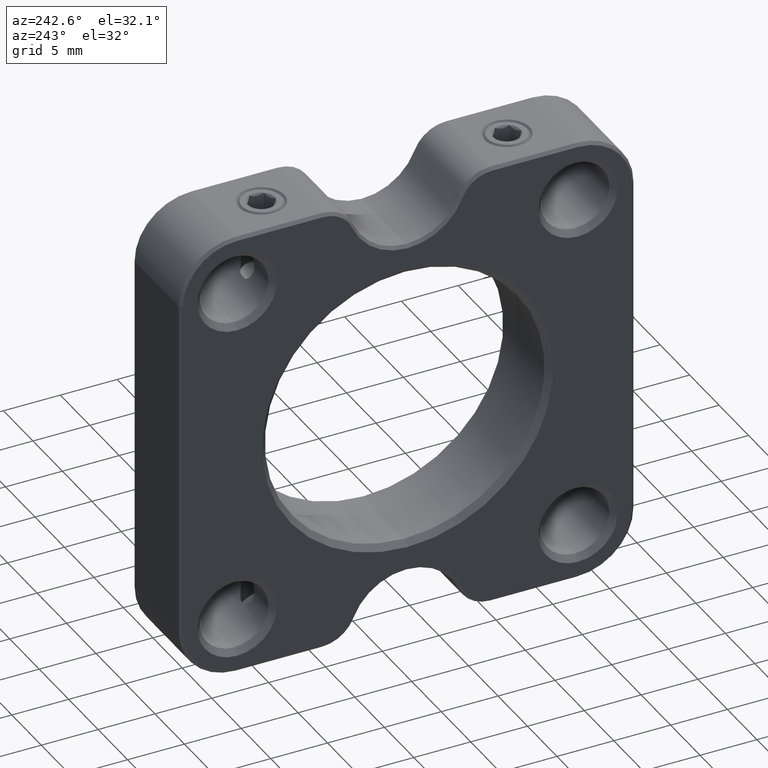
[diagram: clean part render]
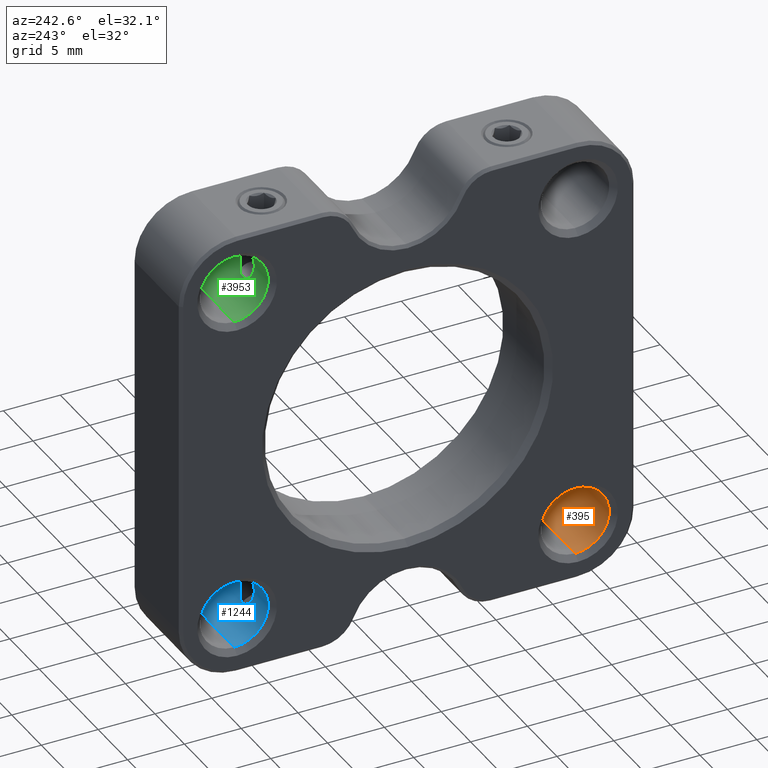
[diagram: same view with three faces highlighted in distinct colors, each labeled with its STEP entity id]
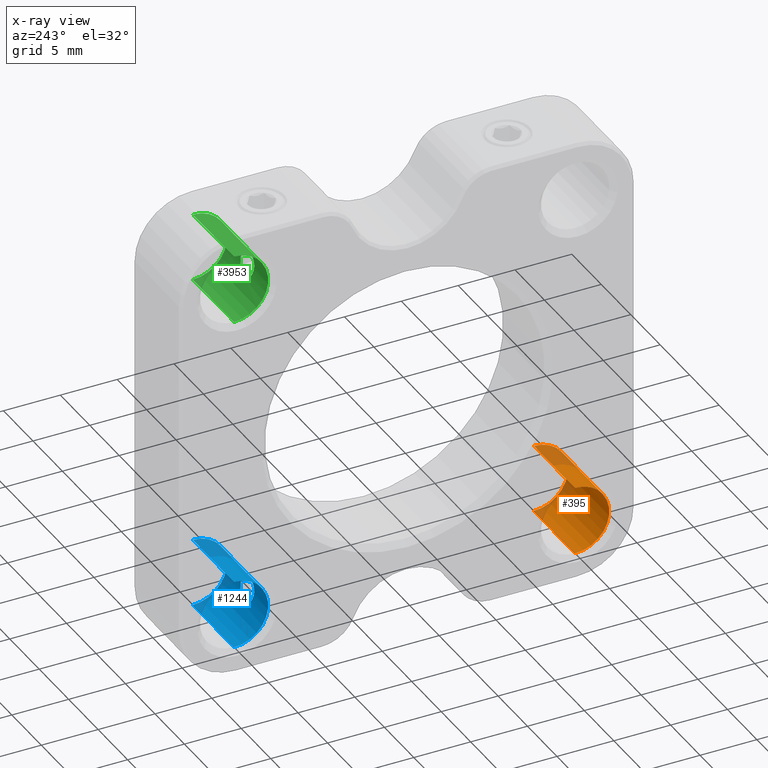
[diagram: x-ray of the same camera — body ghosted, the three highlighted faces saturated]
A machine part, auxiliary view with three faces highlighted in distinct colors.
The next image is the same camera in x-ray (body ghosted, the three faces saturated) — at least one of them is partly hidden behind the body in this view.
Their STEP definitions:

[orange] entity #395 — the highlighted cylindrical surface (partial cylindrical patch) has radius 3 mm, axis along (1, -0, -0).
#130 = CYLINDRICAL_SURFACE ( 'NONE', #4035, 2.999999999999995559 ) ;
#221 = EDGE_CURVE ( 'NONE', #1756, #6231, #7242, .T. ) ;
#395 = ADVANCED_FACE ( 'NONE', ( #3080 ), #130, .F. ) ;
#427 = VERTEX_POINT ( 'NONE', #6609 ) ;
#1017 = DIRECTION ( 'NONE',  ( 1.000000000000000000, 0.000000000000000000, 0.000000000000000000 ) ) ;
#1109 = DIRECTION ( 'NONE',  ( 1.000000000000000000, -0.000000000000000000, -0.000000000000000000 ) ) ;
#1223 = EDGE_CURVE ( 'NONE', #4517, #427, #4166, .T. ) ;
#1317 = CIRCLE ( 'NONE', #3235, 2.999999999999995559 ) ;
#1681 = DIRECTION ( 'NONE',  ( 0.000000000000000000, 0.000000000000000000, -1.000000000000000000 ) ) ;
#1756 = VERTEX_POINT ( 'NONE', #3896 ) ;
#1899 = DIRECTION ( 'NONE',  ( 1.000000000000000000, -0.000000000000000000, -0.000000000000000000 ) ) ;
#2056 = AXIS2_PLACEMENT_3D ( 'NONE', #7158, #1017, #1681 ) ;
#2096 = CARTESIAN_POINT ( 'NONE',  ( -18.70960063692994879, -12.89069877659088981, 28.00000000000001066 ) ) ;
#2658 = EDGE_CURVE ( 'NONE', #1756, #4517, #1317, .T. ) ;
#3080 = FACE_OUTER_BOUND ( 'NONE', #5959, .T. ) ;
#3235 = AXIS2_PLACEMENT_3D ( 'NONE', #6722, #7953, #6042 ) ;
#3313 = DIRECTION ( 'NONE',  ( 1.000000000000000000, -0.000000000000000000, -0.000000000000000000 ) ) ;
#3414 = CARTESIAN_POINT ( 'NONE',  ( -18.20960063692994524, -12.89069877659088981, 28.00000000000001066 ) ) ;
#3801 = VECTOR ( 'NONE', #3313, 1000.000000000000000 ) ;
#3896 = CARTESIAN_POINT ( 'NONE',  ( -18.20960063692994524, -12.89069877659088981, 22.00000000000002132 ) ) ;
#3924 = EDGE_CURVE ( 'NONE', #427, #6231, #7739, .T. ) ;
#4035 = AXIS2_PLACEMENT_3D ( 'NONE', #6003, #1109, #7230 ) ;
#4166 = LINE ( 'NONE', #2096, #3801 ) ;
#4517 = VERTEX_POINT ( 'NONE', #3414 ) ;
#4609 = ORIENTED_EDGE ( 'NONE', *, *, #1223, .T. ) ;
#4844 = VECTOR ( 'NONE', #1899, 1000.000000000000000 ) ;
#5188 = ORIENTED_EDGE ( 'NONE', *, *, #221, .F. ) ;
#5449 = ORIENTED_EDGE ( 'NONE', *, *, #3924, .T. ) ;
#5868 = CARTESIAN_POINT ( 'NONE',  ( -11.20960063692994169, -12.89069877659088981, 22.00000000000002132 ) ) ;
#5959 = EDGE_LOOP ( 'NONE', ( #6797, #4609, #5449, #5188 ) ) ;
#6003 = CARTESIAN_POINT ( 'NONE',  ( -18.70960063692994879, -12.89069877659088981, 25.00000000000001421 ) ) ;
#6042 = DIRECTION ( 'NONE',  ( 0.000000000000000000, 0.000000000000000000, -1.000000000000000000 ) ) ;
#6205 = CARTESIAN_POINT ( 'NONE',  ( -18.70960063692994879, -12.89069877659088981, 22.00000000000002132 ) ) ;
#6231 = VERTEX_POINT ( 'NONE', #5868 ) ;
#6609 = CARTESIAN_POINT ( 'NONE',  ( -11.20960063692994169, -12.89069877659088981, 28.00000000000001066 ) ) ;
#6722 = CARTESIAN_POINT ( 'NONE',  ( -18.20960063692994524, -12.89069877659088981, 25.00000000000001421 ) ) ;
#6797 = ORIENTED_EDGE ( 'NONE', *, *, #2658, .T. ) ;
#7158 = CARTESIAN_POINT ( 'NONE',  ( -11.20960063692994169, -12.89069877659088981, 25.00000000000001421 ) ) ;
#7230 = DIRECTION ( 'NONE',  ( 0.000000000000000000, 0.000000000000000000, -1.000000000000000000 ) ) ;
#7242 = LINE ( 'NONE', #6205, #4844 ) ;
#7739 = CIRCLE ( 'NONE', #2056, 2.999999999999995559 ) ;
#7953 = DIRECTION ( 'NONE',  ( -1.000000000000000000, -0.000000000000000000, -0.000000000000000000 ) ) ;

[blue] entity #1244 — the highlighted cylindrical surface (partial cylindrical patch) has radius 3 mm, axis along (1, -0, -0).
#71 = CARTESIAN_POINT ( 'NONE',  ( -13.62445635263214605, 14.15372243505705896, 24.46049565034046935 ) ) ;
#89 = CARTESIAN_POINT ( 'NONE',  ( -13.57505583098314261, 14.10759699773461229, 25.13284159004853180 ) ) ;
#164 = EDGE_CURVE ( 'NONE', #5740, #5469, #1291, .T. ) ;
#167 = CARTESIAN_POINT ( 'NONE',  ( -14.16058633639641151, 14.47330847950293631, 26.43432663917163694 ) ) ;
#411 = CARTESIAN_POINT ( 'NONE',  ( -15.10499939181904594, 14.51122501205579240, 26.50000000000001776 ) ) ;
#439 = CIRCLE ( 'NONE', #5912, 3.000000000000002665 ) ;
#575 = CARTESIAN_POINT ( 'NONE',  ( -15.33745885246667662, 14.44252658419067004, 23.62285094675122110 ) ) ;
#632 = CARTESIAN_POINT ( 'NONE',  ( -15.66504091560525680, 14.25625921975230881, 25.94099864801087207 ) ) ;
#737 = CARTESIAN_POINT ( 'NONE',  ( -13.78354998335881909, 14.27911758264861319, 23.99479928859547329 ) ) ;
#739 = AXIS2_PLACEMENT_3D ( 'NONE', #7628, #6305, #2692 ) ;
#952 = LINE ( 'NONE', #4952, #7662 ) ;
#1011 = EDGE_CURVE ( 'NONE', #1543, #2921, #952, .T. ) ;
#1022 = CYLINDRICAL_SURFACE ( 'NONE', #739, 3.000000000000002665 ) ;
#1176 = CARTESIAN_POINT ( 'NONE',  ( -15.12244533176195560, 14.50857629180392294, 23.50390961070601392 ) ) ;
#1212 = CARTESIAN_POINT ( 'NONE',  ( -15.25133609942801804, 14.46933604295696973, 26.42603518397427820 ) ) ;
#1219 = DIRECTION ( 'NONE',  ( 0.000000000000000000, 0.000000000000000000, -1.000000000000000000 ) ) ;
#1240 = CARTESIAN_POINT ( 'NONE',  ( -15.63838352948489252, 14.27717104077074062, 24.00033365304306798 ) ) ;
#1244 = ADVANCED_FACE ( 'NONE', ( #2465, #2260 ), #1022, .F. ) ;
#1290 = CARTESIAN_POINT ( 'NONE',  ( -13.71800230406092247, 14.22947356670179708, 24.14378531598565303 ) ) ;
#1291 = B_SPLINE_CURVE_WITH_KNOTS ( 'NONE', 3,
 ( #3048, #4920, #1212, #2985, #4204, #7385, #632, #6701, #6753, #7959, #7273, #3652, #4887, #1792, #1240, #7303, #575, #1176, #3811, #5579, #7414, #6773, #6189, #6265, #7492, #737, #1290, #71, #3217, #4392, #89, #4426, #3788, #5050, #6230, #6877, #167, #5552 ),
 .UNSPECIFIED., .F., .F.,
 ( 4, 2, 2, 2, 2, 2, 2, 2, 2, 2, 2, 2, 2, 2, 2, 2, 2, 2, 4 ),
 ( 1.734723475976807094E-18, 0.0002515376885659038127, 0.0005030753771318058907, 0.001006150754263614600, 0.001509226131395423418, 0.002012301508527232670, 0.002515376885659041054, 0.003018452262790849439, 0.003521527639922658257, 0.003773065328488565268, 0.004024603017054472279, 0.004527678394186281097, 0.005030753771318089915, 0.005533829148449898733, 0.006036904525581705816, 0.006539979902713514634, 0.007043055279845323452, 0.007546130656977132270, 0.008049206034108941088 ),
 .UNSPECIFIED. ) ;
#1346 = LINE ( 'NONE', #4167, #5926 ) ;
#1404 = CARTESIAN_POINT ( 'NONE',  ( -18.20960063692993813, 17.10930122340911197, 22.00000000000001421 ) ) ;
#1543 = VERTEX_POINT ( 'NONE', #2490 ) ;
#1782 = ORIENTED_EDGE ( 'NONE', *, *, #5816, .T. ) ;
#1792 = CARTESIAN_POINT ( 'NONE',  ( -15.70390784982724242, 14.22739032781373147, 24.15098615899930223 ) ) ;
#1919 = CARTESIAN_POINT ( 'NONE',  ( -14.31420188204085164, 14.51122501205579240, 26.50000000000001776 ) ) ;
#2246 = DIRECTION ( 'NONE',  ( 1.000000000000000000, -0.000000000000000000, -0.000000000000000000 ) ) ;
#2260 = FACE_OUTER_BOUND ( 'NONE', #5656, .T. ) ;
#2329 = CARTESIAN_POINT ( 'NONE',  ( -11.20960063692995590, 17.10930122340911197, 22.00000000000001421 ) ) ;
#2465 = FACE_BOUND ( 'NONE', #2970, .T. ) ;
#2490 = CARTESIAN_POINT ( 'NONE',  ( -18.20960063692993813, 17.10930122340911197, 28.00000000000001776 ) ) ;
#2502 = ORIENTED_EDGE ( 'NONE', *, *, #3963, .T. ) ;
#2692 = DIRECTION ( 'NONE',  ( 0.000000000000000000, 0.000000000000000000, -1.000000000000000000 ) ) ;
#2921 = VERTEX_POINT ( 'NONE', #4053 ) ;
#2970 = EDGE_LOOP ( 'NONE', ( #6315, #5012 ) ) ;
#2985 = CARTESIAN_POINT ( 'NONE',  ( -15.37869519850812949, 14.41910201066424513, 26.32884186255519765 ) ) ;
#3048 = CARTESIAN_POINT ( 'NONE',  ( -15.10499939181904594, 14.51122501205579240, 26.50000000000001776 ) ) ;
#3051 = DIRECTION ( 'NONE',  ( 1.000000000000000000, -0.000000000000000000, -0.000000000000000000 ) ) ;
#3217 = CARTESIAN_POINT ( 'NONE',  ( -13.59706721609326685, 14.12792968839333874, 24.62645407397441133 ) ) ;
#3652 = CARTESIAN_POINT ( 'NONE',  ( -15.82261867112496745, 14.12748381113720697, 24.62951749241037902 ) ) ;
#3749 = ORIENTED_EDGE ( 'NONE', *, *, #1011, .T. ) ;
#3788 = CARTESIAN_POINT ( 'NONE',  ( -13.64500888286690738, 14.17176925801279097, 25.62975088519756994 ) ) ;
#3811 = CARTESIAN_POINT ( 'NONE',  ( -15.04636595012643951, 14.52664361248421443, 23.47340717880286576 ) ) ;
#3838 = VERTEX_POINT ( 'NONE', #1404 ) ;
#3963 = EDGE_CURVE ( 'NONE', #2921, #4593, #4448, .T. ) ;
#4053 = CARTESIAN_POINT ( 'NONE',  ( -11.20960063692995590, 17.10930122340911197, 28.00000000000001776 ) ) ;
#4167 = CARTESIAN_POINT ( 'NONE',  ( -18.70960063692994879, 17.10930122340911197, 22.00000000000001421 ) ) ;
#4204 = CARTESIAN_POINT ( 'NONE',  ( -15.43697051555606059, 14.39145029093751127, 26.27194458301286772 ) ) ;
#4225 = DIRECTION ( 'NONE',  ( 0.000000000000000000, 0.000000000000000000, -1.000000000000000000 ) ) ;
#4392 = CARTESIAN_POINT ( 'NONE',  ( -13.57232532395628333, 14.10487255572225251, 24.96099782782963672 ) ) ;
#4426 = CARTESIAN_POINT ( 'NONE',  ( -13.61126857514714317, 14.14087394214201510, 25.46509635808939365 ) ) ;
#4448 = CIRCLE ( 'NONE', #4932, 3.000000000000002665 ) ;
#4463 = EDGE_CURVE ( 'NONE', #5469, #5740, #6908, .T. ) ;
#4593 = VERTEX_POINT ( 'NONE', #2329 ) ;
#4887 = CARTESIAN_POINT ( 'NONE',  ( -15.79582624167567495, 14.15273182314700584, 24.46620950383516302 ) ) ;
#4920 = CARTESIAN_POINT ( 'NONE',  ( -15.18175395498310287, 14.49227987938331097, 26.46718606765513471 ) ) ;
#4932 = AXIS2_PLACEMENT_3D ( 'NONE', #6600, #7876, #1219 ) ;
#4952 = CARTESIAN_POINT ( 'NONE',  ( -18.70960063692994879, 17.10930122340911197, 28.00000000000001776 ) ) ;
#5012 = ORIENTED_EDGE ( 'NONE', *, *, #4463, .T. ) ;
#5050 = CARTESIAN_POINT ( 'NONE',  ( -13.75318280911490199, 14.25557239960380507, 25.93910171191148351 ) ) ;
#5469 = VERTEX_POINT ( 'NONE', #1919 ) ;
#5517 = DIRECTION ( 'NONE',  ( -1.000000000000000000, -0.000000000000000000, -0.000000000000000000 ) ) ;
#5552 = CARTESIAN_POINT ( 'NONE',  ( -14.31420188204085164, 14.51122501205579240, 26.50000000000001776 ) ) ;
#5579 = CARTESIAN_POINT ( 'NONE',  ( -14.88455122628108995, 14.55204270366617969, 23.43123142554387428 ) ) ;
#5656 = EDGE_LOOP ( 'NONE', ( #1782, #3749, #2502, #6557 ) ) ;
#5705 = EDGE_CURVE ( 'NONE', #3838, #4593, #1346, .T. ) ;
#5740 = VERTEX_POINT ( 'NONE', #6588 ) ;
#5816 = EDGE_CURVE ( 'NONE', #3838, #1543, #439, .T. ) ;
#5909 = CARTESIAN_POINT ( 'NONE',  ( -14.57529265171212174, 14.52746141482292508, 26.52812227452483640 ) ) ;
#5912 = AXIS2_PLACEMENT_3D ( 'NONE', #7929, #5517, #4225 ) ;
#5926 = VECTOR ( 'NONE', #2246, 1000.000000000000000 ) ;
#6189 = CARTESIAN_POINT ( 'NONE',  ( -14.37585581202540830, 14.53219290774265637, 23.46164484518433824 ) ) ;
#6230 = CARTESIAN_POINT ( 'NONE',  ( -13.82811758986586703, 14.30886304687725996, 26.08436479250829620 ) ) ;
#6265 = CARTESIAN_POINT ( 'NONE',  ( -14.08767288158545306, 14.44499940155535711, 23.61814629750763572 ) ) ;
#6305 = DIRECTION ( 'NONE',  ( 1.000000000000000000, -0.000000000000000000, -0.000000000000000000 ) ) ;
#6315 = ORIENTED_EDGE ( 'NONE', *, *, #164, .T. ) ;
#6557 = ORIENTED_EDGE ( 'NONE', *, *, #5705, .F. ) ;
#6588 = CARTESIAN_POINT ( 'NONE',  ( -15.10499939181904594, 14.51122501205579240, 26.50000000000001776 ) ) ;
#6600 = CARTESIAN_POINT ( 'NONE',  ( -11.20960063692995590, 17.10930122340911197, 25.00000000000001421 ) ) ;
#6701 = CARTESIAN_POINT ( 'NONE',  ( -15.77306066926961314, 14.17271514198217730, 25.63386853255062903 ) ) ;
#6753 = CARTESIAN_POINT ( 'NONE',  ( -15.80721704471231881, 14.14152025181964234, 25.46946710526396984 ) ) ;
#6773 = CARTESIAN_POINT ( 'NONE',  ( -14.54625362775548680, 14.55983190501484437, 23.41879563561439781 ) ) ;
#6877 = CARTESIAN_POINT ( 'NONE',  ( -14.03126675738226936, 14.41782659867751448, 26.33201551351119107 ) ) ;
#6908 = B_SPLINE_CURVE_WITH_KNOTS ( 'NONE', 3,
 ( #7001, #5909, #7753, #411 ),
 .UNSPECIFIED., .F., .F.,
 ( 4, 4 ),
 ( 0.0005648106053424811193, 0.001354004834273596618 ),
 .UNSPECIFIED. ) ;
#7001 = CARTESIAN_POINT ( 'NONE',  ( -14.31420188204085164, 14.51122501205579240, 26.50000000000001776 ) ) ;
#7273 = CARTESIAN_POINT ( 'NONE',  ( -15.84700679336095064, 14.10474473809314766, 24.96634446399721696 ) ) ;
#7303 = CARTESIAN_POINT ( 'NONE',  ( -15.45597692791376510, 14.38464116085027200, 23.73646459481883042 ) ) ;
#7385 = CARTESIAN_POINT ( 'NONE',  ( -15.58968512219898805, 14.30975918194274676, 26.08664217276540853 ) ) ;
#7414 = CARTESIAN_POINT ( 'NONE',  ( -14.79918710278007410, 14.55902323308786350, 23.42010049878815181 ) ) ;
#7492 = CARTESIAN_POINT ( 'NONE',  ( -13.96837034900570096, 14.38732163303931344, 23.73067142935852303 ) ) ;
#7628 = CARTESIAN_POINT ( 'NONE',  ( -18.70960063692994879, 17.10930122340911197, 25.00000000000001421 ) ) ;
#7662 = VECTOR ( 'NONE', #3051, 1000.000000000000000 ) ;
#7753 = CARTESIAN_POINT ( 'NONE',  ( -14.84352352557233523, 14.52748536275149682, 26.52816375355386214 ) ) ;
#7876 = DIRECTION ( 'NONE',  ( 1.000000000000000000, 0.000000000000000000, 0.000000000000000000 ) ) ;
#7929 = CARTESIAN_POINT ( 'NONE',  ( -18.20960063692993813, 17.10930122340911197, 25.00000000000001421 ) ) ;
#7959 = CARTESIAN_POINT ( 'NONE',  ( -15.84405949056605678, 14.10768706361947622, 25.13577810576007110 ) ) ;

[green] entity #3953 — the highlighted cylindrical surface (partial cylindrical patch) has radius 3 mm, axis along (1, -0, -0).
#228 = EDGE_LOOP ( 'NONE', ( #1171, #598 ) ) ;
#348 = CARTESIAN_POINT ( 'NONE',  ( -13.96322434594613959, 14.38464116085027200, 56.26353540518120155 ) ) ;
#369 = CARTESIAN_POINT ( 'NONE',  ( -15.45083092485420373, 14.38732163303931699, 56.26932857064151250 ) ) ;
#401 = CARTESIAN_POINT ( 'NONE',  ( -15.77419239099298665, 14.17176925801279630, 54.37024911480244782 ) ) ;
#432 = CARTESIAN_POINT ( 'NONE',  ( -14.31420188204086763, 14.51122501205579596, 53.50000000000001421 ) ) ;
#465 = CARTESIAN_POINT ( 'NONE',  ( -15.04334546183449994, 14.53219290774265993, 56.53835515481570440 ) ) ;
#509 = CARTESIAN_POINT ( 'NONE',  ( -14.31420188204086763, 14.51122501205579596, 53.50000000000001421 ) ) ;
#598 = ORIENTED_EDGE ( 'NONE', *, *, #6873, .T. ) ;
#699 = CARTESIAN_POINT ( 'NONE',  ( -18.70960063692994879, 17.10930122340911197, 52.00000000000002132 ) ) ;
#859 = CARTESIAN_POINT ( 'NONE',  ( -14.29675594209795086, 14.50857629180393182, 56.49609038929403226 ) ) ;
#987 = ORIENTED_EDGE ( 'NONE', *, *, #7788, .T. ) ;
#1091 = CARTESIAN_POINT ( 'NONE',  ( -15.82213405776662718, 14.12792968839333696, 55.37354592602560643 ) ) ;
#1124 = DIRECTION ( 'NONE',  ( 1.000000000000000000, -0.000000000000000000, -0.000000000000000000 ) ) ;
#1171 = ORIENTED_EDGE ( 'NONE', *, *, #6850, .T. ) ;
#1396 = DIRECTION ( 'NONE',  ( 0.000000000000000000, 0.000000000000000000, -1.000000000000000000 ) ) ;
#1424 = CARTESIAN_POINT ( 'NONE',  ( -18.20960063692994169, 17.10930122340911197, 52.00000000000002132 ) ) ;
#1490 = CARTESIAN_POINT ( 'NONE',  ( -14.08174242139322629, 14.44252658419067892, 56.37714905324882153 ) ) ;
#1592 = B_SPLINE_CURVE_WITH_KNOTS ( 'NONE', 3,
 ( #6944, #5819, #2164, #7582, #4622, #5154, #2768, #3281, #3916, #7042, #3376, #2084, #4546, #7660, #3892, #348, #1490, #859, #2104, #6390, #7721, #7101, #465, #6498, #369, #4123, #1677, #4752, #1091, #2180, #7747, #4052, #401, #6470, #5291, #1614, #3405, #5900 ),
 .UNSPECIFIED., .F., .F.,
 ( 4, 2, 2, 2, 2, 2, 2, 2, 2, 2, 2, 2, 2, 2, 2, 2, 2, 2, 4 ),
 ( 1.734723475976807094E-18, 0.0002515376885659074448, 0.0005030753771318131548, 0.001006150754263624575, 0.001509226131395435778, 0.002012301508527247415, 0.002515376885659058835, 0.003018452262790869822, 0.003521527639922681242, 0.003773065328488584783, 0.004024603017054488759, 0.004527678394186294974, 0.005030753771318102058, 0.005533829148449909141, 0.006036904525581715357, 0.006539979902713522440, 0.007043055279845329524, 0.007546130656977136607, 0.008049206034108942823 ),
 .UNSPECIFIED. ) ;
#1614 = CARTESIAN_POINT ( 'NONE',  ( -15.38793451647761756, 14.41782659867751804, 53.66798448648883380 ) ) ;
#1677 = CARTESIAN_POINT ( 'NONE',  ( -15.70119896979897334, 14.22947356670179886, 55.85621468401438960 ) ) ;
#1846 = VECTOR ( 'NONE', #3777, 1000.000000000000000 ) ;
#1930 = VERTEX_POINT ( 'NONE', #2877 ) ;
#1995 = AXIS2_PLACEMENT_3D ( 'NONE', #5430, #5448, #5999 ) ;
#2084 = CARTESIAN_POINT ( 'NONE',  ( -13.59658260273493013, 14.12748381113720697, 55.37048250758964940 ) ) ;
#2104 = CARTESIAN_POINT ( 'NONE',  ( -14.37283532373346340, 14.52664361248421798, 56.52659282119716977 ) ) ;
#2164 = CARTESIAN_POINT ( 'NONE',  ( -14.16786517443189197, 14.46933604295697151, 53.57396481602572891 ) ) ;
#2180 = CARTESIAN_POINT ( 'NONE',  ( -15.84687594990361781, 14.10487255572225251, 55.03900217217039170 ) ) ;
#2348 = VERTEX_POINT ( 'NONE', #1424 ) ;
#2559 = B_SPLINE_CURVE_WITH_KNOTS ( 'NONE', 3,
 ( #4073, #6518, #7765, #432 ),
 .UNSPECIFIED., .F., .F.,
 ( 4, 4 ),
 ( 0.0005648106053424983581, 0.001354004834273586210 ),
 .UNSPECIFIED. ) ;
#2609 = VERTEX_POINT ( 'NONE', #2927 ) ;
#2768 = CARTESIAN_POINT ( 'NONE',  ( -13.75416035825465144, 14.25625921975231591, 54.05900135198915990 ) ) ;
#2877 = CARTESIAN_POINT ( 'NONE',  ( -18.20960063692994169, 17.10930122340911197, 58.00000000000000711 ) ) ;
#2927 = CARTESIAN_POINT ( 'NONE',  ( -11.20960063692995767, 17.10930122340911197, 58.00000000000000711 ) ) ;
#3038 = CARTESIAN_POINT ( 'NONE',  ( -18.70960063692994879, 17.10930122340911197, 58.00000000000000711 ) ) ;
#3056 = VERTEX_POINT ( 'NONE', #5628 ) ;
#3065 = DIRECTION ( 'NONE',  ( 1.000000000000000000, -0.000000000000000000, -0.000000000000000000 ) ) ;
#3281 = CARTESIAN_POINT ( 'NONE',  ( -13.64614060459028266, 14.17271514198217197, 54.36613146744938518 ) ) ;
#3357 = CARTESIAN_POINT ( 'NONE',  ( -15.10499939181903351, 14.51122501205579596, 53.50000000000001421 ) ) ;
#3376 = CARTESIAN_POINT ( 'NONE',  ( -13.57219448049896116, 14.10474473809315832, 55.03365553600282567 ) ) ;
#3397 = FACE_BOUND ( 'NONE', #228, .T. ) ;
#3405 = CARTESIAN_POINT ( 'NONE',  ( -15.25861493746347719, 14.47330847950294164, 53.56567336082840569 ) ) ;
#3622 = DIRECTION ( 'NONE',  ( 0.000000000000000000, 0.000000000000000000, -1.000000000000000000 ) ) ;
#3777 = DIRECTION ( 'NONE',  ( 1.000000000000000000, -0.000000000000000000, -0.000000000000000000 ) ) ;
#3813 = DIRECTION ( 'NONE',  ( -1.000000000000000000, -0.000000000000000000, -0.000000000000000000 ) ) ;
#3844 = CARTESIAN_POINT ( 'NONE',  ( -18.20960063692994169, 17.10930122340911197, 55.00000000000001421 ) ) ;
#3892 = CARTESIAN_POINT ( 'NONE',  ( -13.78081774437501750, 14.27717104077074062, 55.99966634695697820 ) ) ;
#3916 = CARTESIAN_POINT ( 'NONE',  ( -13.61198422914759121, 14.14152025181964767, 54.53053289473606924 ) ) ;
#3953 = ADVANCED_FACE ( 'NONE', ( #3397, #5511 ), #7239, .F. ) ;
#3962 = ORIENTED_EDGE ( 'NONE', *, *, #4209, .F. ) ;
#4032 = LINE ( 'NONE', #699, #1846 ) ;
#4052 = CARTESIAN_POINT ( 'NONE',  ( -15.80793269871275086, 14.14087394214202043, 54.53490364191061701 ) ) ;
#4073 = CARTESIAN_POINT ( 'NONE',  ( -15.10499939181903351, 14.51122501205579596, 53.50000000000001421 ) ) ;
#4102 = CIRCLE ( 'NONE', #5472, 2.999999999999995559 ) ;
#4123 = CARTESIAN_POINT ( 'NONE',  ( -15.63565129050107849, 14.27911758264861852, 56.00520071140456224 ) ) ;
#4209 = EDGE_CURVE ( 'NONE', #2348, #3056, #4032, .T. ) ;
#4546 = CARTESIAN_POINT ( 'NONE',  ( -13.62337503218422441, 14.15273182314700762, 55.53379049616485474 ) ) ;
#4622 = CARTESIAN_POINT ( 'NONE',  ( -13.98223075830384943, 14.39145029093751482, 53.72805541698715359 ) ) ;
#4752 = CARTESIAN_POINT ( 'NONE',  ( -15.79474492122775331, 14.15372243505706074, 55.53950434965955907 ) ) ;
#4765 = ORIENTED_EDGE ( 'NONE', *, *, #6590, .T. ) ;
#4850 = EDGE_CURVE ( 'NONE', #1930, #2609, #6893, .T. ) ;
#5154 = CARTESIAN_POINT ( 'NONE',  ( -13.82951615166091308, 14.30975918194276275, 53.91335782723461278 ) ) ;
#5291 = CARTESIAN_POINT ( 'NONE',  ( -15.59108368399402700, 14.30886304687726529, 53.91563520749172511 ) ) ;
#5430 = CARTESIAN_POINT ( 'NONE',  ( -11.20960063692995767, 17.10930122340911197, 55.00000000000001421 ) ) ;
#5448 = DIRECTION ( 'NONE',  ( 1.000000000000000000, 0.000000000000000000, 0.000000000000000000 ) ) ;
#5472 = AXIS2_PLACEMENT_3D ( 'NONE', #3844, #3813, #1396 ) ;
#5496 = CIRCLE ( 'NONE', #1995, 2.999999999999995559 ) ;
#5511 = FACE_OUTER_BOUND ( 'NONE', #7965, .T. ) ;
#5628 = CARTESIAN_POINT ( 'NONE',  ( -11.20960063692995767, 17.10930122340911197, 52.00000000000002132 ) ) ;
#5672 = VERTEX_POINT ( 'NONE', #509 ) ;
#5757 = VECTOR ( 'NONE', #3065, 1000.000000000000000 ) ;
#5819 = CARTESIAN_POINT ( 'NONE',  ( -14.23744731887681780, 14.49227987938331097, 53.53281393234491503 ) ) ;
#5900 = CARTESIAN_POINT ( 'NONE',  ( -15.10499939181903351, 14.51122501205579596, 53.50000000000001421 ) ) ;
#5999 = DIRECTION ( 'NONE',  ( 0.000000000000000000, 0.000000000000000000, -1.000000000000000000 ) ) ;
#6275 = AXIS2_PLACEMENT_3D ( 'NONE', #6524, #1124, #3622 ) ;
#6390 = CARTESIAN_POINT ( 'NONE',  ( -14.53465004757881651, 14.55204270366618147, 56.56876857445617190 ) ) ;
#6470 = CARTESIAN_POINT ( 'NONE',  ( -15.66601846474499560, 14.25557239960380684, 54.06089828808855202 ) ) ;
#6498 = CARTESIAN_POINT ( 'NONE',  ( -15.33152839227444630, 14.44499940155535711, 56.38185370249239270 ) ) ;
#6518 = CARTESIAN_POINT ( 'NONE',  ( -14.84390862214777229, 14.52746141482292686, 53.47187772547519558 ) ) ;
#6524 = CARTESIAN_POINT ( 'NONE',  ( -18.70960063692994879, 17.10930122340911197, 55.00000000000001421 ) ) ;
#6590 = EDGE_CURVE ( 'NONE', #2609, #3056, #5496, .T. ) ;
#6850 = EDGE_CURVE ( 'NONE', #5672, #7002, #1592, .T. ) ;
#6873 = EDGE_CURVE ( 'NONE', #7002, #5672, #2559, .T. ) ;
#6893 = LINE ( 'NONE', #3038, #5757 ) ;
#6944 = CARTESIAN_POINT ( 'NONE',  ( -14.31420188204086763, 14.51122501205579596, 53.50000000000001421 ) ) ;
#7002 = VERTEX_POINT ( 'NONE', #3357 ) ;
#7042 = CARTESIAN_POINT ( 'NONE',  ( -13.57514178329384791, 14.10768706361947977, 54.86422189423995377 ) ) ;
#7101 = CARTESIAN_POINT ( 'NONE',  ( -14.87294764610441788, 14.55983190501484614, 56.58120436438564838 ) ) ;
#7200 = ORIENTED_EDGE ( 'NONE', *, *, #4850, .T. ) ;
#7239 = CYLINDRICAL_SURFACE ( 'NONE', #6275, 2.999999999999995559 ) ;
#7582 = CARTESIAN_POINT ( 'NONE',  ( -14.04050607535178408, 14.41910201066424690, 53.67115813744483432 ) ) ;
#7660 = CARTESIAN_POINT ( 'NONE',  ( -13.71529342403266227, 14.22739032781373503, 55.84901384100074040 ) ) ;
#7721 = CARTESIAN_POINT ( 'NONE',  ( -14.62001417107983237, 14.55902323308786706, 56.57989950121189793 ) ) ;
#7747 = CARTESIAN_POINT ( 'NONE',  ( -15.84414544287676385, 14.10759699773461584, 54.86715840995150018 ) ) ;
#7765 = CARTESIAN_POINT ( 'NONE',  ( -14.57567774828756768, 14.52748536275149860, 53.47183624644617339 ) ) ;
#7788 = EDGE_CURVE ( 'NONE', #2348, #1930, #4102, .T. ) ;
#7965 = EDGE_LOOP ( 'NONE', ( #987, #7200, #4765, #3962 ) ) ;